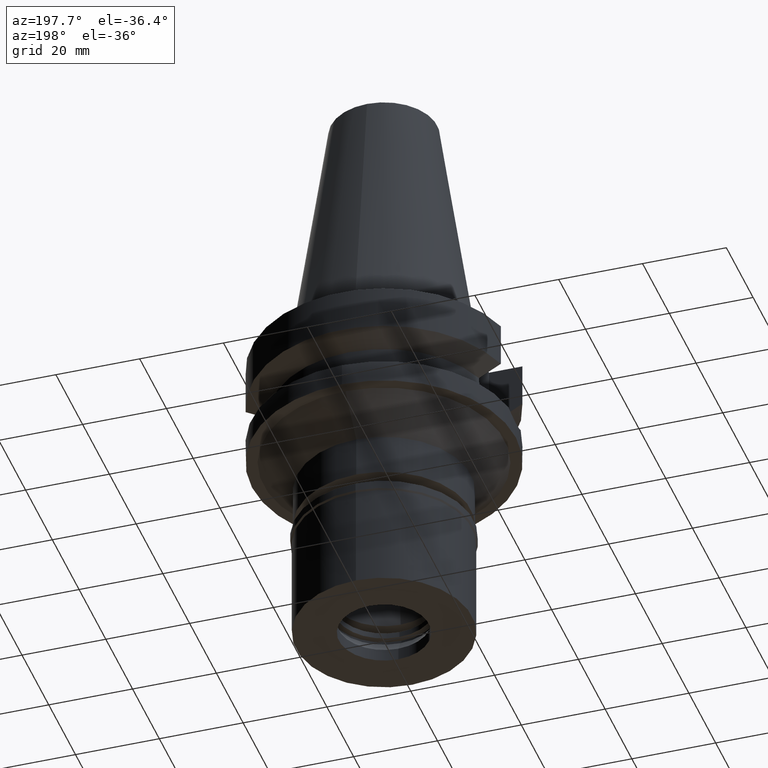
[diagram: clean part render]
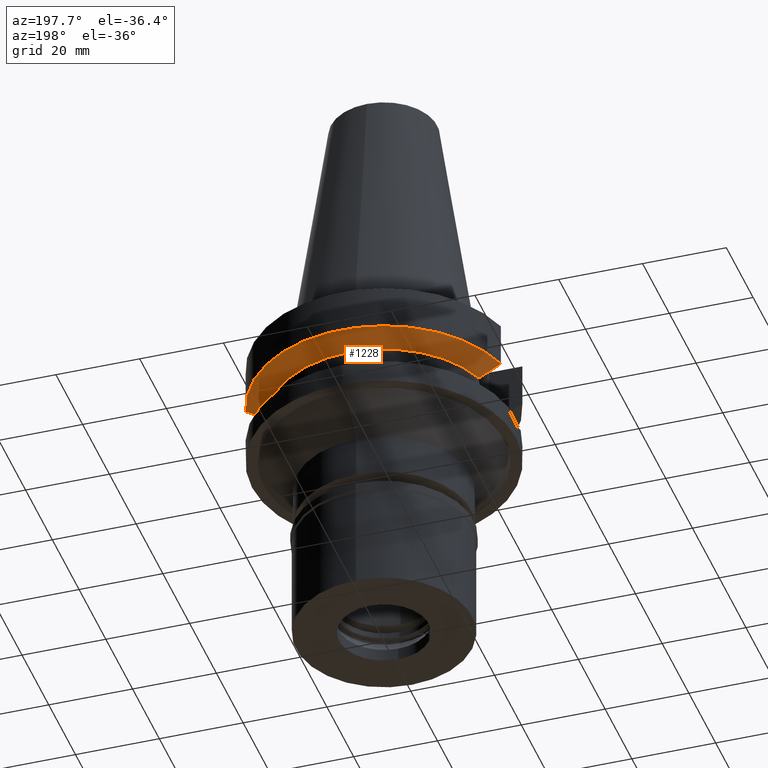
[diagram: same view with one face highlighted and labeled with its STEP entity id]
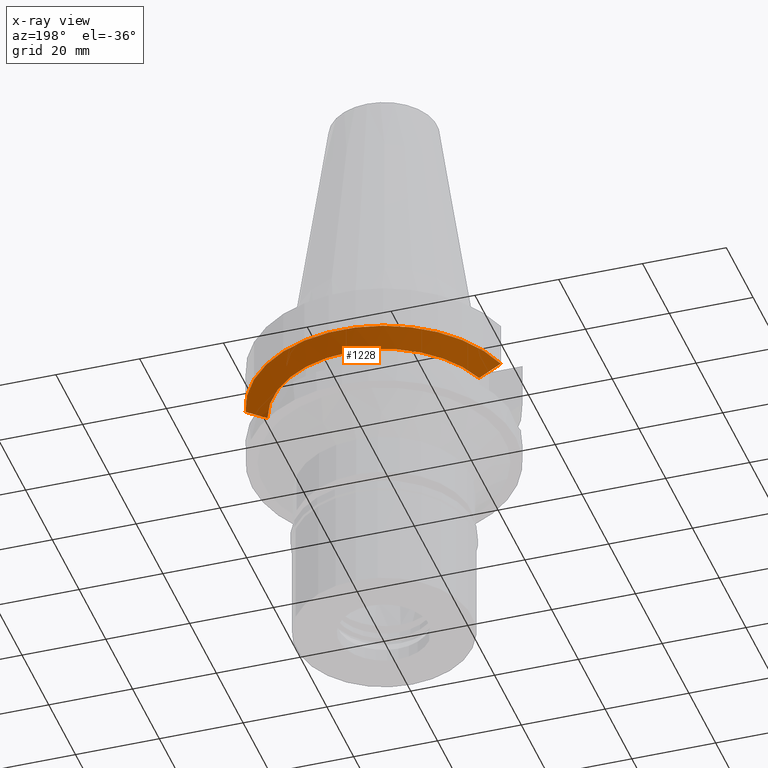
[diagram: x-ray of the same camera — body ghosted, the highlighted face saturated]
A machine part, auxiliary view. The second image highlights one B-rep face of the part: STEP entity #1228.
The next image is the same camera in x-ray: the body ghosted, the highlighted face saturated — about 0% of this face is hidden behind the body in this view.
In plain terms, the highlighted conical surface has half-angle 60 deg.
Its self-contained STEP definition (entity closure, byte-faithful):
#6 = CARTESIAN_POINT ( 'NONE',  ( -26.83758102788027600, 8.050003142852821370, -13.57772760840842174 ) ) ;
#163 = CIRCLE ( 'NONE', #1869, 26.50000000000000711 ) ;
#247 = VERTEX_POINT ( 'NONE', #1731 ) ;
#319 = CARTESIAN_POINT ( 'NONE',  ( 25.24772413898999801, 8.049995391397999356, -14.45229221434999900 ) ) ;
#490 = ORIENTED_EDGE ( 'NONE', *, *, #951, .T. ) ;
#598 = AXIS2_PLACEMENT_3D ( 'NONE', #1509, #2949, #2233 ) ;
#628 = VERTEX_POINT ( 'NONE', #2156 ) ;
#672 = EDGE_CURVE ( 'NONE', #247, #1856, #2245, .T. ) ;
#746 = CARTESIAN_POINT ( 'NONE',  ( -30.45402162346999830, 8.050004158840000201, -11.56546819162000084 ) ) ;
#895 = ORIENTED_EDGE ( 'NONE', *, *, #2346, .F. ) ;
#951 = EDGE_CURVE ( 'NONE', #628, #2558, #1727, .T. ) ;
#970 = CARTESIAN_POINT ( 'NONE',  ( 25.24772413898999801, 8.049995391397999356, -14.45229221434999900 ) ) ;
#978 = CARTESIAN_POINT ( 'NONE',  ( -28.57295828620687672, 8.050008312625644535, -12.61547503751728705 ) ) ;
#1189 = ORIENTED_EDGE ( 'NONE', *, *, #1313, .F. ) ;
#1228 = ADVANCED_FACE ( 'NONE', ( #2967 ), #2805, .T. ) ;
#1313 = EDGE_CURVE ( 'NONE', #628, #1856, #2902, .T. ) ;
#1509 = CARTESIAN_POINT ( 'NONE',  ( 0.0000000000000000000, 0.0000000000000000000, -11.56550565266999975 ) ) ;
#1673 = DIRECTION ( 'NONE',  ( -0.9527442516822307583, 0.3037735849057093818, 0.0000000000000000000 ) ) ;
#1685 = CARTESIAN_POINT ( 'NONE',  ( -25.24772216909000377, 8.050001569732000206, -14.45224500447000082 ) ) ;
#1689 = CARTESIAN_POINT ( 'NONE',  ( 26.83754589215579500, 8.049990772587381826, -13.57774903672709321 ) ) ;
#1727 = B_SPLINE_CURVE_WITH_KNOTS ( 'NONE', 3,
 ( #1943, #1929, #1689, #970 ),
 .UNSPECIFIED., .F., .F.,
 ( 4, 4 ),
 ( 0.0000000000000000000, 1.000000000000000000 ),
 .UNSPECIFIED. ) ;
#1731 = CARTESIAN_POINT ( 'NONE',  ( -25.24772216909000377, 8.050001569732000206, -14.45224500447000082 ) ) ;
#1806 = DIRECTION ( 'NONE',  ( 0.0000000000000000000, 1.000000000000000000, 0.0000000000000000000 ) ) ;
#1856 = VERTEX_POINT ( 'NONE', #746 ) ;
#1869 = AXIS2_PLACEMENT_3D ( 'NONE', #2586, #2570, #1673 ) ;
#1929 = CARTESIAN_POINT ( 'NONE',  ( 28.57292303220847529, 8.049998538576042861, -12.61549620223704693 ) ) ;
#1943 = CARTESIAN_POINT ( 'NONE',  ( 30.45402291605999778, 8.049999268812999986, -11.56551223831000108 ) ) ;
#1946 = EDGE_LOOP ( 'NONE', ( #1189, #490, #895, #2070 ) ) ;
#2070 = ORIENTED_EDGE ( 'NONE', *, *, #672, .T. ) ;
#2156 = CARTESIAN_POINT ( 'NONE',  ( 30.45402291605999778, 8.049999268812999986, -11.56551223831000108 ) ) ;
#2233 = DIRECTION ( 'NONE',  ( 0.0000000000000000000, 1.000000000000000000, 0.0000000000000000000 ) ) ;
#2245 = B_SPLINE_CURVE_WITH_KNOTS ( 'NONE', 3,
 ( #1685, #6, #978, #2390 ),
 .UNSPECIFIED., .F., .F.,
 ( 4, 4 ),
 ( 0.0000000000000000000, 1.000000000000000000 ),
 .UNSPECIFIED. ) ;
#2250 = CARTESIAN_POINT ( 'NONE',  ( 0.0000000000000000000, 0.0000000000000000000, -13.00888132564000088 ) ) ;
#2346 = EDGE_CURVE ( 'NONE', #247, #2558, #163, .T. ) ;
#2390 = CARTESIAN_POINT ( 'NONE',  ( -30.45402162346999830, 8.050004158840000201, -11.56546819162000084 ) ) ;
#2558 = VERTEX_POINT ( 'NONE', #319 ) ;
#2570 = DIRECTION ( 'NONE',  ( 0.0000000000000000000, 0.0000000000000000000, -1.000000000000000000 ) ) ;
#2586 = CARTESIAN_POINT ( 'NONE',  ( 0.0000000000000000000, 0.0000000000000000000, -14.45225699861000024 ) ) ;
#2660 = AXIS2_PLACEMENT_3D ( 'NONE', #2250, #2677, #1806 ) ;
#2677 = DIRECTION ( 'NONE',  ( 0.0000000000000000000, 0.0000000000000000000, 1.000000000000000000 ) ) ;
#2805 = CONICAL_SURFACE ( 'NONE', #2660, 29.00000000000000000, 1.047197551196400456 ) ;
#2902 = CIRCLE ( 'NONE', #598, 31.50000000000000000 ) ;
#2949 = DIRECTION ( 'NONE',  ( 0.0000000000000000000, 0.0000000000000000000, 1.000000000000000000 ) ) ;
#2967 = FACE_OUTER_BOUND ( 'NONE', #1946, .T. ) ;